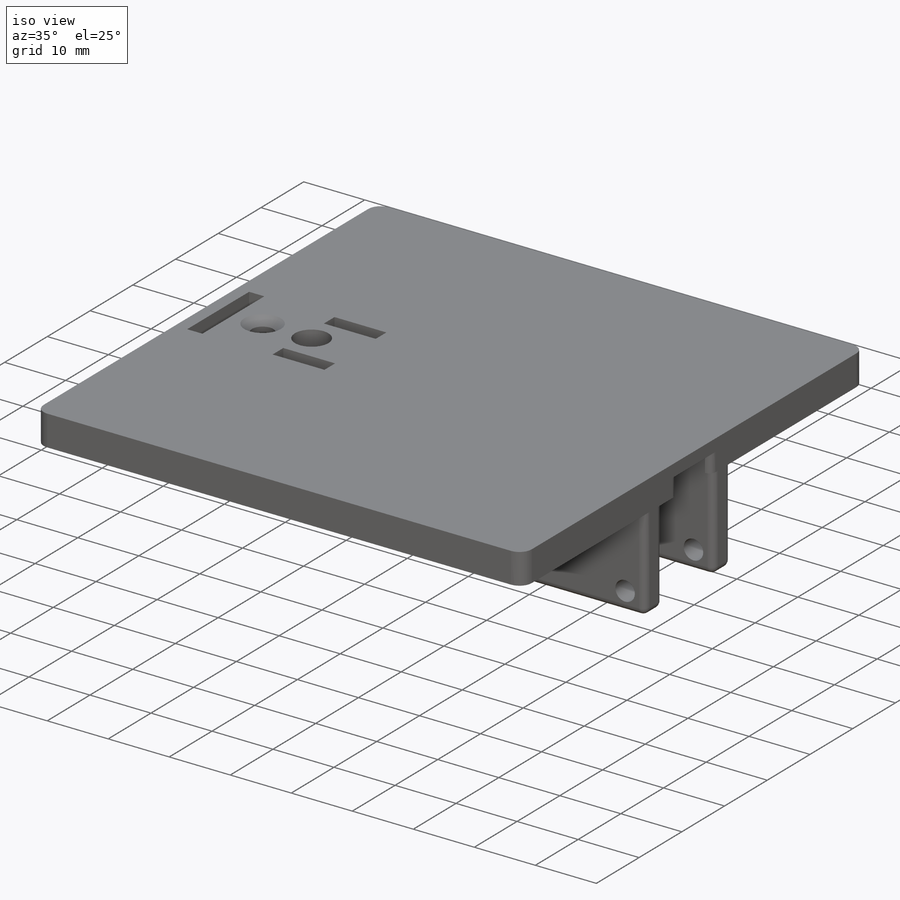
[diagram: iso view]
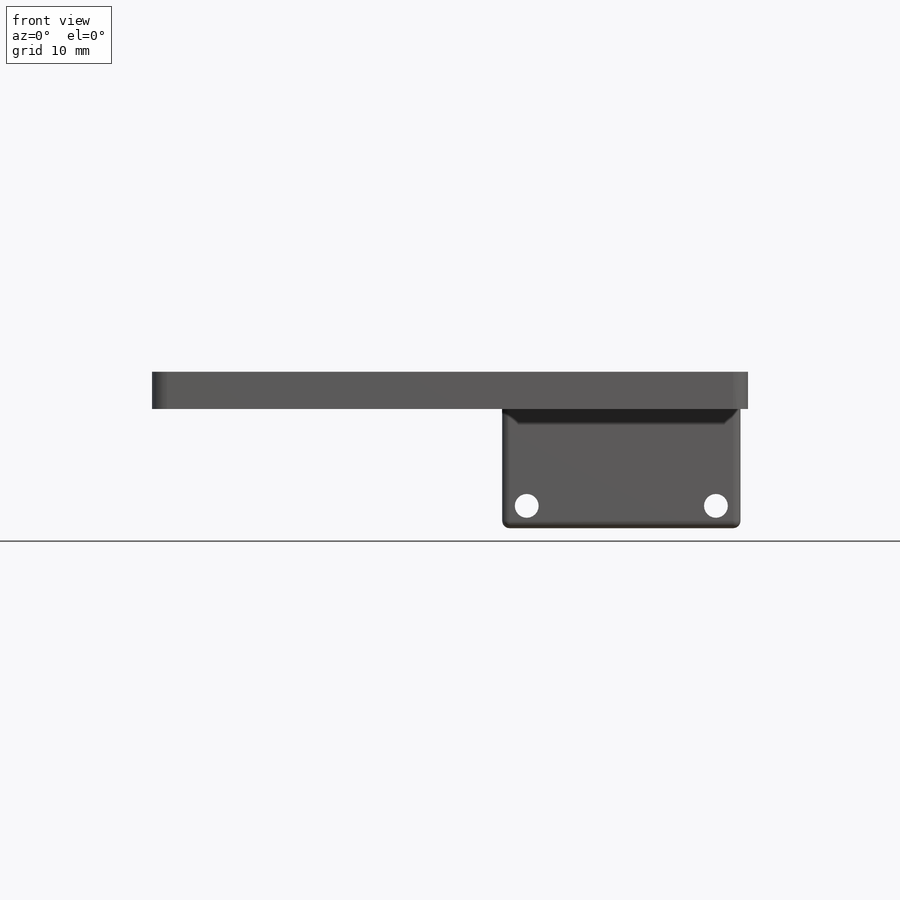
[diagram: front view]
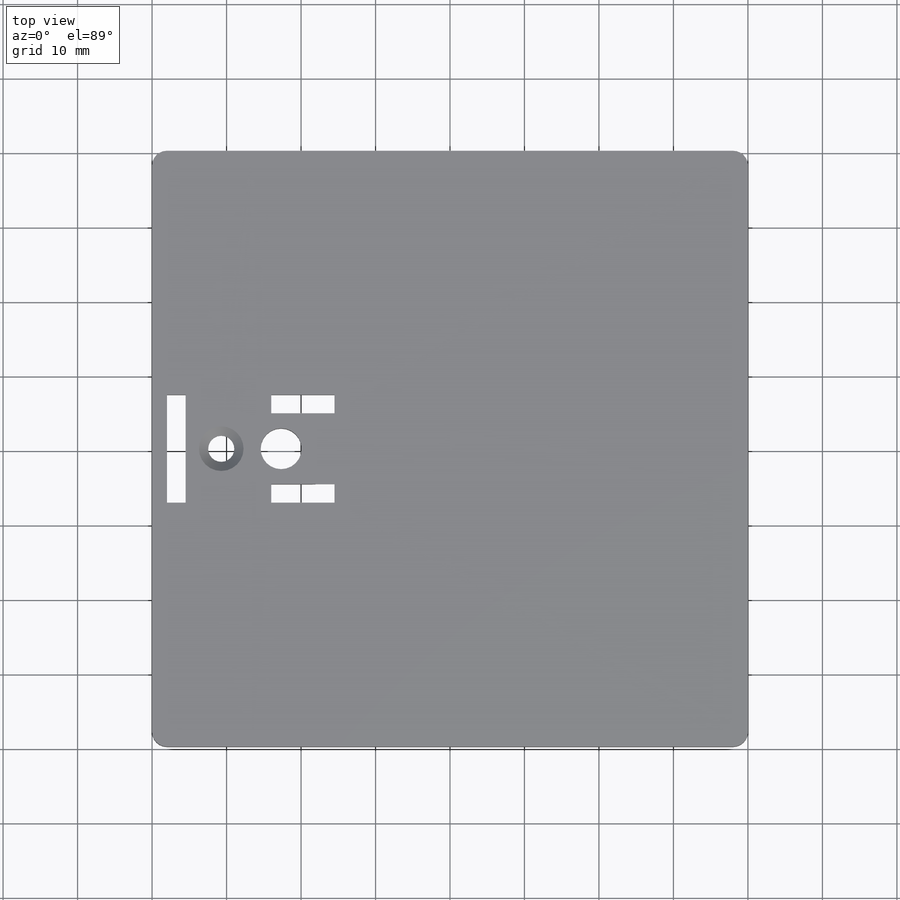
[diagram: top view]
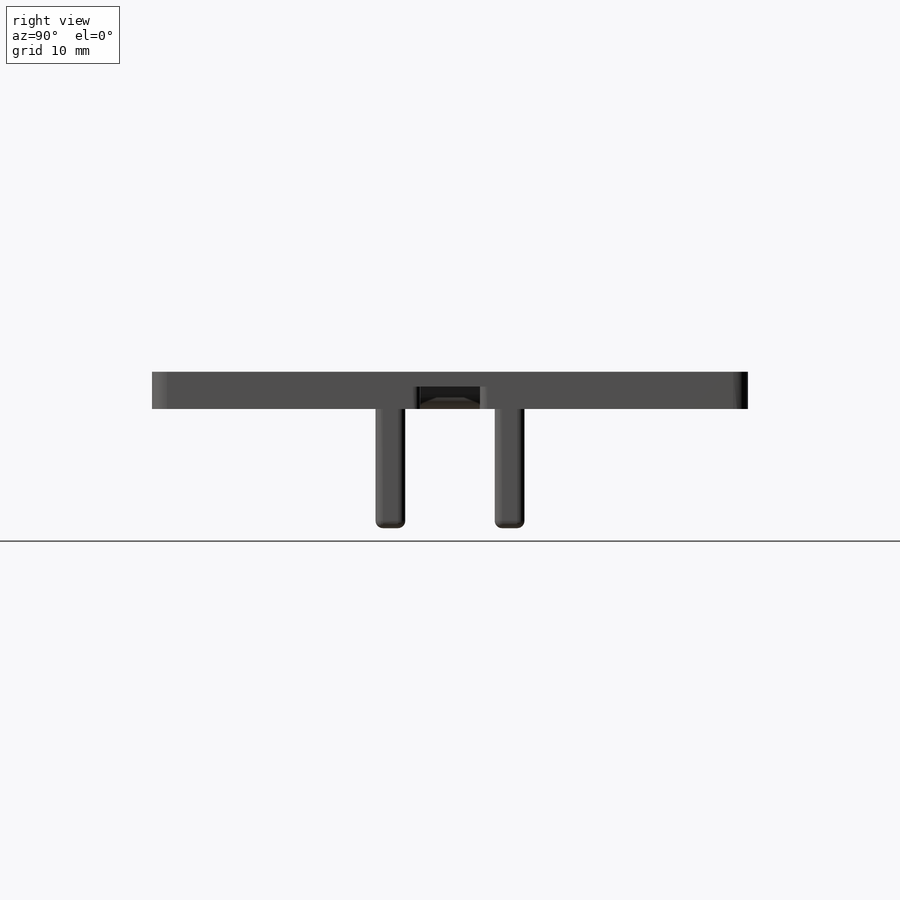
[diagram: right view]
SOLIDWORKS PART (.sldprt)
format: sldprt  version: not decoded by parser v0  size: 446,464 bytes
history: native  units: mm
features: sketch x10, cut_extrude x8, fillet x5, extrude x2, material x1 (+12 scaffold rows collapsed)
feature tree (38):
  scaffold x12  (default folders/planes/origin — collapsed)
  material  "Material <not specified>"
  sketch  "Sketch1"  dims[c1.D1=80.0mm c1.D2=80.0mm c2.D1=80.0mm c2.D2=80.0mm]
  extrude  "Boss-Extrude1"  Depth=5mm
  sketch  "Sketch2"  dims[D1=32.0mm D2=12.0mm D3=1.0mm D4=6.0mm]
  cut_extrude  "Cut-Extrude1"  Depth=1mm
  sketch  "Sketch3"  dims[c1.D1=6.0mm c1.D2=33.0mm c1.D3=6.0mm c1.D4=33.0mm c2.D1=6.0mm c2.D2=6.0mm c2.D3=34.0mm c3.D1=4.0mm c3.D2=4.0mm]
  extrude  "Boss-Extrude2"  Depth=16mm
  sketch  "Sketch4"  dims[c1.D1=2.0mm c1.D2=3.0mm c1.D3=8.0mm c1.D4=4.0mm c2.D1=8.0mm c2.D2=4.0mm c2.D3=3.0mm]
  cut_extrude  "Cut-Extrude2"  [1 undecoded]
  sketch  "Sketch5"  dims[D1=3.2mm D2=3.2mm D3=3.3mm D4=3.3mm D5=3.0mm D6=3.0mm]
  cut_extrude  "Cut-Extrude3"  [1 undecoded]
  sketch  "Sketch6"  dims[D1=2.5mm D2=14.5mm D3=7.25mm D4=2.0mm D5=8.5mm D6=~2.499491mm D7=2.5mm D8=8.5mm D9=22.5mm D10=22.5mm D11=7.25mm D12=7.25mm]
  cut_extrude  "Cut-Extrude4"  [1 undecoded]
  sketch  "Sketch7"  dims[D1=3.5mm D2=5.5mm D3=7.29mm D4=8.04mm]
  cut_extrude  "Cut-Extrude5"  [1 undecoded]
  sketch  "Sketch8"  dims[D1=6.0mm]
  cut_extrude  "Cut-Extrude6"  Depth=3mm
  sketch  "Sketch9"  dims[D1=25.0mm D2=12.0mm]
  cut_extrude  "Cut-Extrude7"  Depth=3mm
  fillet  "Fillet1"  Radius=2mm
  fillet  "Fillet2"  Radius=1mm
  fillet  "Fillet3"  Radius=1mm
  fillet  "Fillet4"  Radius=2mm
  sketch  "Sketch10"  dims[c1.D1=6.0mm c1.D2=0.75mm c1.D3=~4.271837mm c2.D2=~4.791452mm]
  cut_extrude  "Cut-Extrude8"  Depth=3mm
  fillet  "Fillet5"  Radius=1mm
decode coverage: 21 of 25 modeling features carry decoded parameters
note: ~ marks probable driven/reference dimensions
note: 4 parameter values undecoded
summary: no parameter record found for 4 features
note: suppression state not decoded; provenance and decode notes live in map.json
